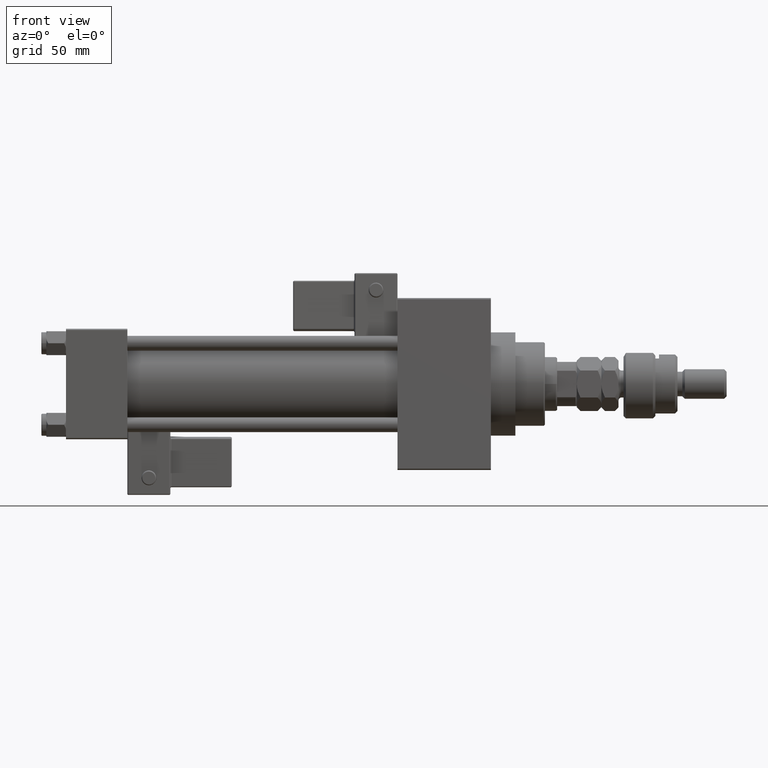
[diagram: clean part render]
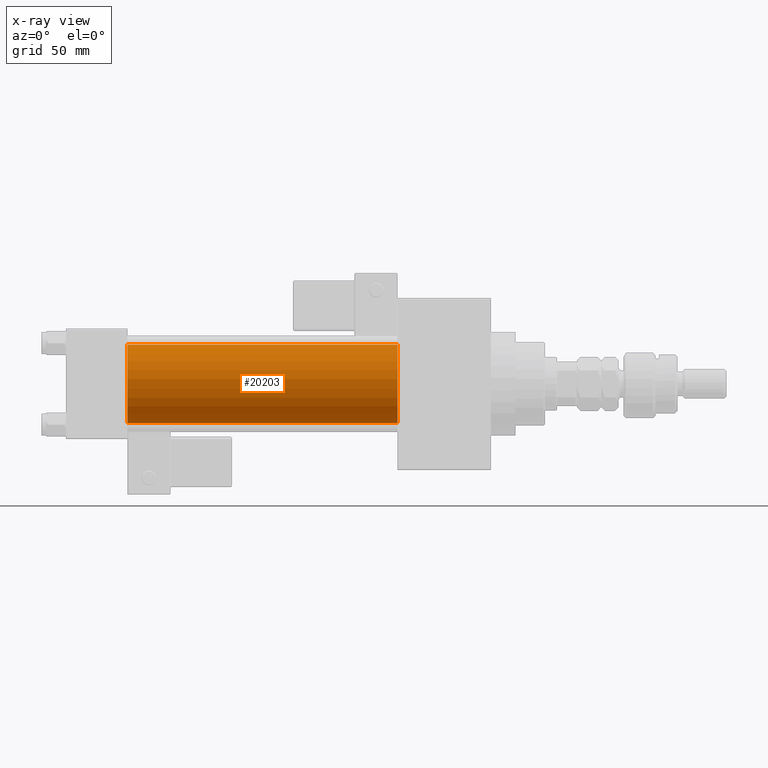
[diagram: x-ray — body ghosted, one internal face saturated and labeled with its STEP entity id]
A machine part, front view, then the same camera in x-ray: the body is ghosted and one INTERNAL B-rep face — a face not visible from any outside direction — is saturated and labeled: STEP entity #20203.
In plain terms, the highlighted cylindrical surface (partial cylindrical patch) has radius 16 mm, axis along (-1, -0, -0).
Its self-contained STEP definition (entity closure, byte-faithful):
#859 = CARTESIAN_POINT ( 'NONE',  ( 135.0000000000000000, -2.602085213965210642E-15, 0.000000000000000000 ) ) ;
#1985 = AXIS2_PLACEMENT_3D ( 'NONE', #859, #17601, #34331 ) ;
#6118 = VERTEX_POINT ( 'NONE', #53872 ) ;
#7299 = VERTEX_POINT ( 'NONE', #22969 ) ;
#8452 = ORIENTED_EDGE ( 'NONE', *, *, #32827, .T. ) ;
#13189 = CARTESIAN_POINT ( 'NONE',  ( 135.0000000000000000, -6.426503353294456087E-16, -16.00000000000000000 ) ) ;
#15140 = CARTESIAN_POINT ( 'NONE',  ( 135.0000000000000000, -2.602085213965210642E-15, 0.000000000000000000 ) ) ;
#15714 = EDGE_CURVE ( 'NONE', #7299, #6118, #39881, .T. ) ;
#17601 = DIRECTION ( 'NONE',  ( -1.000000000000000000, -0.000000000000000000, -0.000000000000000000 ) ) ;
#18503 = CARTESIAN_POINT ( 'NONE',  ( 135.0000000000000000, -2.602085213965210642E-15, 16.00000000000000000 ) ) ;
#20203 = ADVANCED_FACE ( 'NONE', ( #46440 ), #46710, .F. ) ;
#22969 = CARTESIAN_POINT ( 'NONE',  ( 135.0000000000000000, -2.602085213965210642E-15, 16.00000000000000000 ) ) ;
#24773 = DIRECTION ( 'NONE',  ( 1.000000000000000000, 0.000000000000000000, 0.000000000000000000 ) ) ;
#24811 = CIRCLE ( 'NONE', #26530, 16.00000000000000000 ) ;
#26452 = EDGE_LOOP ( 'NONE', ( #27730, #8452, #43894, #28547 ) ) ;
#26530 = AXIS2_PLACEMENT_3D ( 'NONE', #15140, #27198, #27467 ) ;
#27152 = CIRCLE ( 'NONE', #37680, 16.00000000000000000 ) ;
#27198 = DIRECTION ( 'NONE',  ( 1.000000000000000000, 0.000000000000000000, 0.000000000000000000 ) ) ;
#27467 = DIRECTION ( 'NONE',  ( 0.000000000000000000, 0.000000000000000000, -1.000000000000000000 ) ) ;
#27730 = ORIENTED_EDGE ( 'NONE', *, *, #46600, .T. ) ;
#28547 = ORIENTED_EDGE ( 'NONE', *, *, #15714, .F. ) ;
#30911 = VERTEX_POINT ( 'NONE', #41046 ) ;
#32827 = EDGE_CURVE ( 'NONE', #50670, #30911, #33501, .T. ) ;
#33501 = LINE ( 'NONE', #13189, #40091 ) ;
#34331 = DIRECTION ( 'NONE',  ( 0.000000000000000000, 0.000000000000000000, 1.000000000000000000 ) ) ;
#34515 = CARTESIAN_POINT ( 'NONE',  ( 135.0000000000000000, -6.426503353294456087E-16, -16.00000000000000000 ) ) ;
#34956 = DIRECTION ( 'NONE',  ( -1.000000000000000000, -0.000000000000000000, -0.000000000000000000 ) ) ;
#37532 = EDGE_CURVE ( 'NONE', #6118, #30911, #27152, .T. ) ;
#37680 = AXIS2_PLACEMENT_3D ( 'NONE', #45636, #24773, #45365 ) ;
#39881 = LINE ( 'NONE', #18503, #50935 ) ;
#40091 = VECTOR ( 'NONE', #42553, 1000.000000000000000 ) ;
#41046 = CARTESIAN_POINT ( 'NONE',  ( 25.00000000000000000, -6.426503353294456087E-16, -16.00000000000000000 ) ) ;
#42553 = DIRECTION ( 'NONE',  ( -1.000000000000000000, -0.000000000000000000, -0.000000000000000000 ) ) ;
#43894 = ORIENTED_EDGE ( 'NONE', *, *, #37532, .F. ) ;
#45365 = DIRECTION ( 'NONE',  ( 0.000000000000000000, 0.000000000000000000, -1.000000000000000000 ) ) ;
#45636 = CARTESIAN_POINT ( 'NONE',  ( 25.00000000000000000, -2.602085213965210642E-15, 0.000000000000000000 ) ) ;
#46440 = FACE_OUTER_BOUND ( 'NONE', #26452, .T. ) ;
#46600 = EDGE_CURVE ( 'NONE', #7299, #50670, #24811, .T. ) ;
#46710 = CYLINDRICAL_SURFACE ( 'NONE', #1985, 16.00000000000000000 ) ;
#50670 = VERTEX_POINT ( 'NONE', #34515 ) ;
#50935 = VECTOR ( 'NONE', #34956, 1000.000000000000000 ) ;
#53872 = CARTESIAN_POINT ( 'NONE',  ( 25.00000000000000000, -2.602085213965210642E-15, 16.00000000000000000 ) ) ;